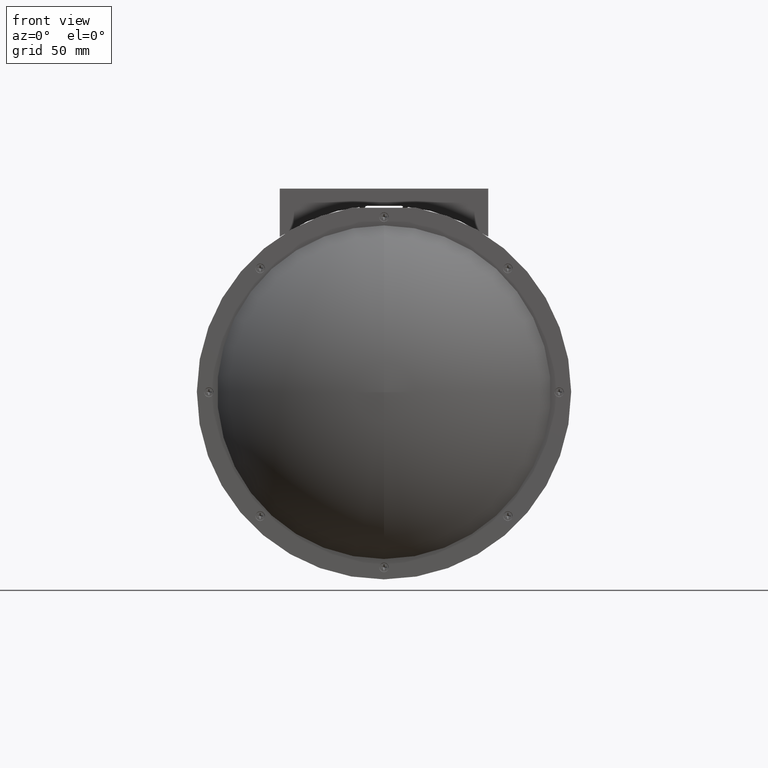
[diagram: clean part render]
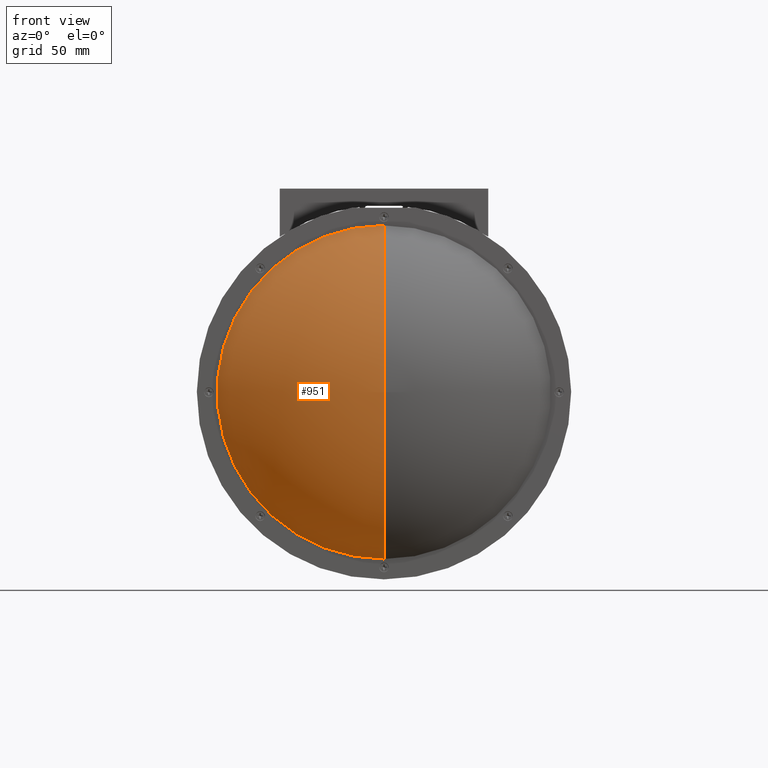
[diagram: same view with one face highlighted and labeled with its STEP entity id]
A machine part, front view. The second image highlights one B-rep face of the part: STEP entity #951.
In plain terms, the highlighted toroidal blend (fillet) surface has major radius 2.1746 mm and minor (blend) radius 104.425 mm.
Its self-contained STEP definition (entity closure, byte-faithful):
#186 = CARTESIAN_POINT ( 'NONE',  ( -1.570761672972061700, 0.3196992588359077700, 0.8843357499627972900 ) ) ;
#947 = ORIENTED_EDGE ( 'NONE', *, *, #58048, .T. ) ;
#951 = ADVANCED_FACE ( 'NONE', ( #63583 ), #20403, .T. ) ;
#3540 = DIRECTION ( 'NONE',  ( -1.089758663891266100E-014, 0.0000000000000000000, -1.000000000000000000 ) ) ;
#7727 = ORIENTED_EDGE ( 'NONE', *, *, #31341, .T. ) ;
#8201 = CARTESIAN_POINT ( 'NONE',  ( -1.570761672972062600, 0.3196992588359078300, 0.7987203422335753500 ) ) ;
#9484 = CIRCLE ( 'NONE', #14571, 3.118710364087075700 ) ;
#9697 = DIRECTION ( 'NONE',  ( 1.000000000000000000, -1.734671887152439200E-018, -1.092198567960834800E-014 ) ) ;
#9876 = EDGE_LOOP ( 'NONE', ( #32594, #7727, #947 ) ) ;
#11523 = VERTEX_POINT ( 'NONE', #27979 ) ;
#14571 = AXIS2_PLACEMENT_3D ( 'NONE', #15698, #15487, #61491 ) ;
#15487 = DIRECTION ( 'NONE',  ( -1.734671887152883700E-018, -1.000000000000000000, -2.898355118681010300E-017 ) ) ;
#15698 = CARTESIAN_POINT ( 'NONE',  ( -1.570761672972062600, -2.455622844625818600, 0.7987203422335753500 ) ) ;
#18382 = CARTESIAN_POINT ( 'NONE',  ( -1.570761672972063300, 0.3196992588359078800, 0.7131049345043535300 ) ) ;
#20403 = TOROIDAL_SURFACE ( 'NONE', #47795, 0.08561540772922192300, 4.111213664144283800 ) ;
#23049 = CARTESIAN_POINT ( 'NONE',  ( -1.570761672972062600, -3.790622844625817700, 0.7987203422335720200 ) ) ;
#23282 = DIRECTION ( 'NONE',  ( 1.083113793989490300E-014, 0.0000000000000000000, 1.000000000000000000 ) ) ;
#23819 = EDGE_CURVE ( 'NONE', #62974, #57996, #62217, .T. ) ;
#27979 = CARTESIAN_POINT ( 'NONE',  ( -1.570761672972095900, -2.455622844625818600, -2.319990021853500100 ) ) ;
#31341 = EDGE_CURVE ( 'NONE', #62974, #11523, #9484, .T. ) ;
#32594 = ORIENTED_EDGE ( 'NONE', *, *, #23819, .F. ) ;
#32606 = AXIS2_PLACEMENT_3D ( 'NONE', #186, #9697, #3540 ) ;
#43408 = DIRECTION ( 'NONE',  ( -1.000000000000000000, 1.734671887152543000E-018, 1.079952099969361300E-014 ) ) ;
#47795 = AXIS2_PLACEMENT_3D ( 'NONE', #8201, #48421, #63676 ) ;
#48421 = DIRECTION ( 'NONE',  ( -1.734671887161695800E-018, -1.000000000000000000, -8.475147852435177800E-016 ) ) ;
#49481 = CARTESIAN_POINT ( 'NONE',  ( -1.570761672972028600, -2.455622844625818600, 3.917430706320651300 ) ) ;
#54355 = AXIS2_PLACEMENT_3D ( 'NONE', #18382, #43408, #23282 ) ;
#57996 = VERTEX_POINT ( 'NONE', #23049 ) ;
#58048 = EDGE_CURVE ( 'NONE', #11523, #57996, #62676, .T. ) ;
#61491 = DIRECTION ( 'NONE',  ( -1.000000000000000000, 0.0000000000000000000, 1.081803655455183600E-014 ) ) ;
#62217 = CIRCLE ( 'NONE', #32606, 4.111213664144283800 ) ;
#62676 = CIRCLE ( 'NONE', #54355, 4.111213664144283800 ) ;
#62974 = VERTEX_POINT ( 'NONE', #49481 ) ;
#63583 = FACE_OUTER_BOUND ( 'NONE', #9876, .T. ) ;
#63676 = DIRECTION ( 'NONE',  ( -1.080546191379261300E-014, 8.475147852435176800E-016, -1.000000000000000000 ) ) ;